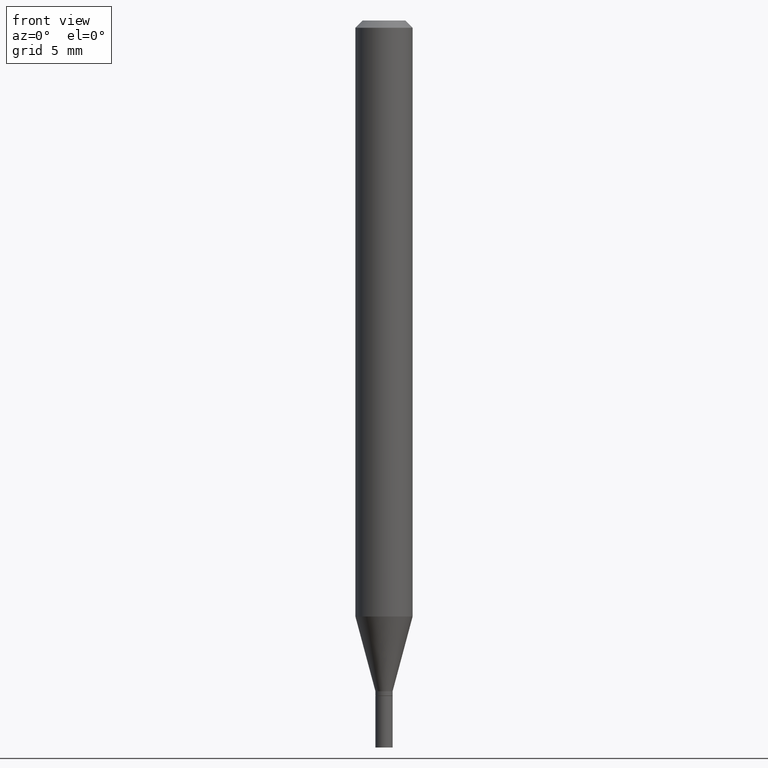
[diagram: clean part render]
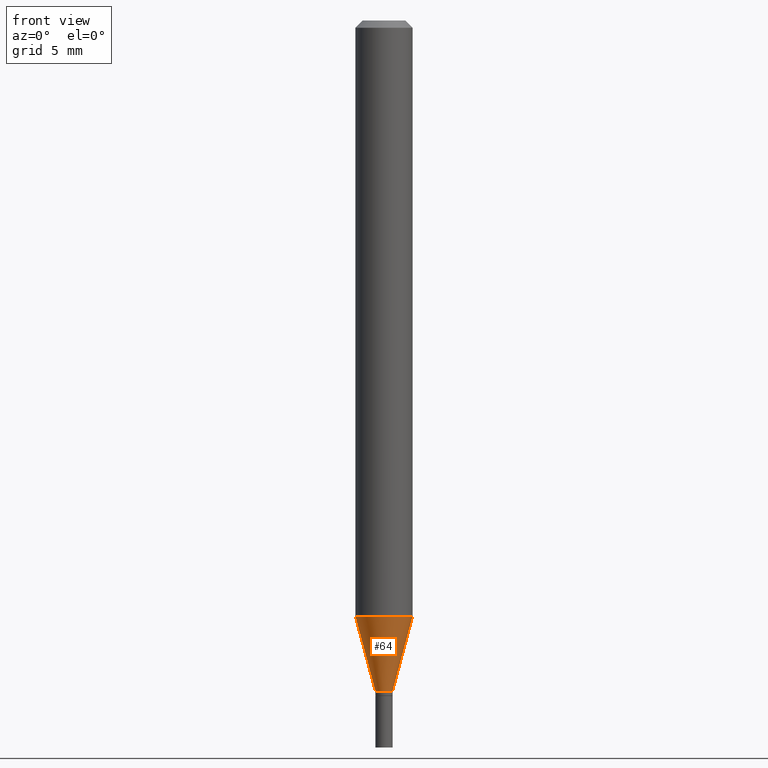
[diagram: same view with one face highlighted and labeled with its STEP entity id]
A machine part, front view. The second image highlights one B-rep face of the part: STEP entity #64.
In plain terms, the highlighted conical surface has half-angle 15 deg.
Its self-contained STEP definition (entity closure, byte-faithful):
#3 = DIRECTION ( 'NONE',  ( 1.000000000000000000, -6.982962677686247778E-15, 0.000000000000000000 ) ) ;
#4 = FACE_OUTER_BOUND ( 'NONE', #128, .T. ) ;
#36 = CARTESIAN_POINT ( 'NONE',  ( -0.01769999999999992413, -4.706444108729376279E-15, -1.384000000000000119 ) ) ;
#64 = ADVANCED_FACE ( 'NONE', ( #4 ), #251, .T. ) ;
#67 = DIRECTION ( 'NONE',  ( 0.2588190451025214611, 1.565188264969621573E-15, 0.9659258262890682012 ) ) ;
#69 = AXIS2_PLACEMENT_3D ( 'NONE', #213, #358, #429 ) ;
#81 = CARTESIAN_POINT ( 'NONE',  ( -0.05904999999999999832, -3.873828236720099766E-15, -1.229679699107027124 ) ) ;
#89 = VECTOR ( 'NONE', #382, 39.37007874015747433 ) ;
#94 = ORIENTED_EDGE ( 'NONE', *, *, #300, .T. ) ;
#123 = ORIENTED_EDGE ( 'NONE', *, *, #212, .F. ) ;
#128 = EDGE_LOOP ( 'NONE', ( #200, #94, #203, #123 ) ) ;
#133 = DIRECTION ( 'NONE',  ( 1.000000000000000000, -6.982962677686247778E-15, 0.000000000000000000 ) ) ;
#138 = EDGE_CURVE ( 'NONE', #148, #234, #241, .T. ) ;
#148 = VERTEX_POINT ( 'NONE', #466 ) ;
#170 = EDGE_CURVE ( 'NONE', #424, #450, #207, .T. ) ;
#200 = ORIENTED_EDGE ( 'NONE', *, *, #170, .F. ) ;
#203 = ORIENTED_EDGE ( 'NONE', *, *, #138, .T. ) ;
#207 = LINE ( 'NONE', #36, #89 ) ;
#212 = EDGE_CURVE ( 'NONE', #450, #234, #430, .T. ) ;
#213 = CARTESIAN_POINT ( 'NONE',  ( 3.007143345765359865E-29, -4.293403722186439259E-15, -1.229679699107027124 ) ) ;
#234 = VERTEX_POINT ( 'NONE', #454 ) ;
#241 = LINE ( 'NONE', #389, #261 ) ;
#251 = CONICAL_SURFACE ( 'NONE', #316, 0.01769999999999992413, 0.2617993877991501295 ) ;
#261 = VECTOR ( 'NONE', #67, 39.37007874015747433 ) ;
#290 = DIRECTION ( 'NONE',  ( -2.445468806185136597E-29, 3.491481338843145583E-15, 1.000000000000000000 ) ) ;
#300 = EDGE_CURVE ( 'NONE', #424, #148, #464, .T. ) ;
#316 = AXIS2_PLACEMENT_3D ( 'NONE', #435, #290, #133 ) ;
#343 = AXIS2_PLACEMENT_3D ( 'NONE', #425, #434, #3 ) ;
#358 = DIRECTION ( 'NONE',  ( -2.445468806185136597E-29, 3.491481338843145583E-15, 1.000000000000000000 ) ) ;
#382 = DIRECTION ( 'NONE',  ( -0.2588190451025214611, 5.211531920934551042E-15, 0.9659258262890682012 ) ) ;
#389 = CARTESIAN_POINT ( 'NONE',  ( 0.01769999999999992413, -4.955808612353959180E-15, -1.384000000000000119 ) ) ;
#398 = CARTESIAN_POINT ( 'NONE',  ( -0.01769999999999992413, -4.290136172724738022E-15, -1.384000000000000119 ) ) ;
#424 = VERTEX_POINT ( 'NONE', #398 ) ;
#425 = CARTESIAN_POINT ( 'NONE',  ( 3.384528827760229323E-29, -4.832210172958913572E-15, -1.384000000000000119 ) ) ;
#429 = DIRECTION ( 'NONE',  ( 1.000000000000000000, -6.982962677686265133E-15, 0.000000000000000000 ) ) ;
#430 = CIRCLE ( 'NONE', #69, 0.05904999999999999832 ) ;
#434 = DIRECTION ( 'NONE',  ( -2.445468806185136597E-29, 3.491481338843145583E-15, 1.000000000000000000 ) ) ;
#435 = CARTESIAN_POINT ( 'NONE',  ( 3.384528827760229323E-29, -4.832210172958913572E-15, -1.384000000000000119 ) ) ;
#450 = VERTEX_POINT ( 'NONE', #81 ) ;
#454 = CARTESIAN_POINT ( 'NONE',  ( 0.05904999999999999832, -4.705747668303811812E-15, -1.229679699107027124 ) ) ;
#464 = CIRCLE ( 'NONE', #343, 0.01769999999999992413 ) ;
#466 = CARTESIAN_POINT ( 'NONE',  ( 0.01769999999999992413, -4.955808612353959180E-15, -1.384000000000000119 ) ) ;